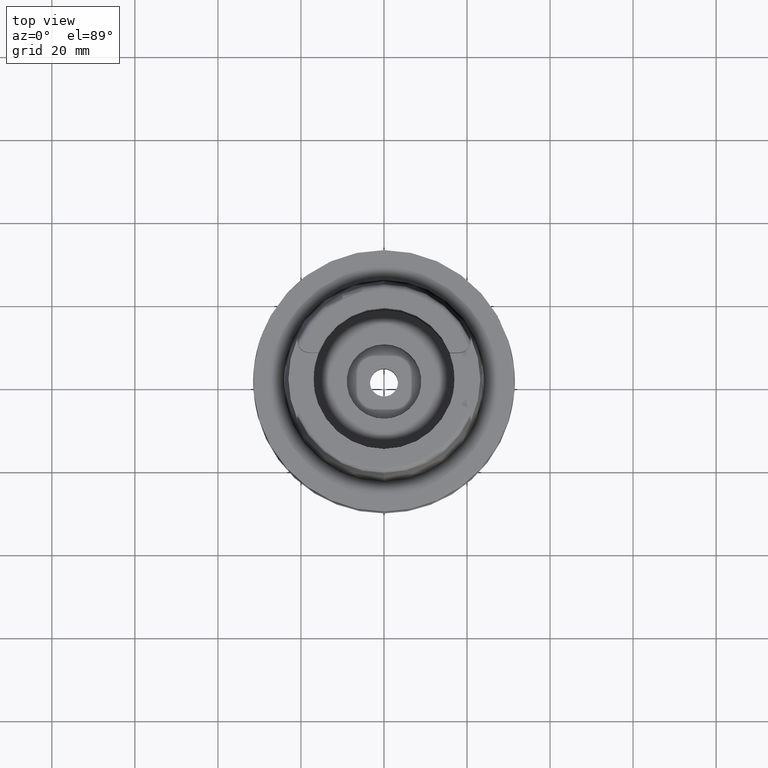
[diagram: clean part render]
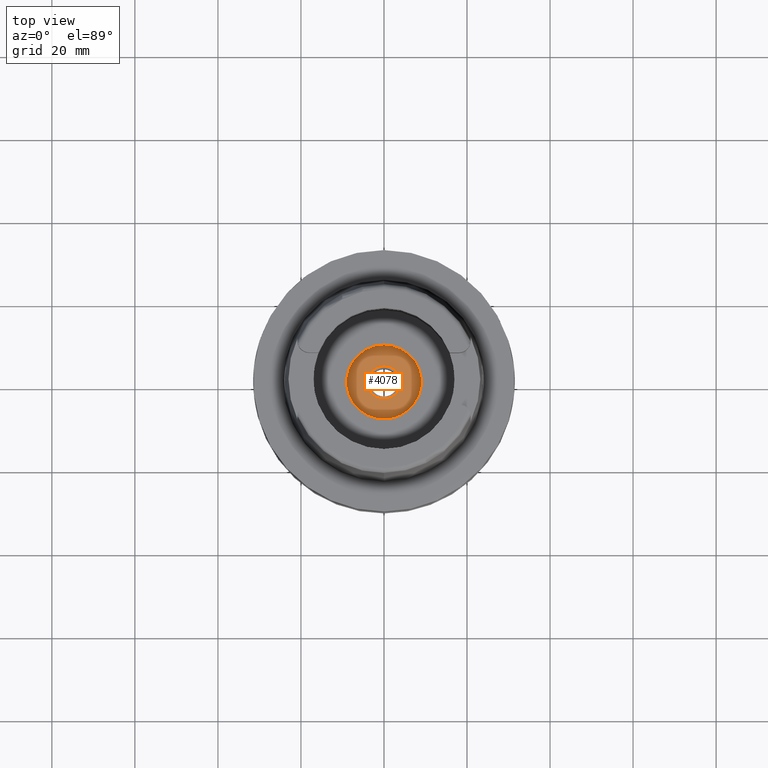
[diagram: same view with one face highlighted and labeled with its STEP entity id]
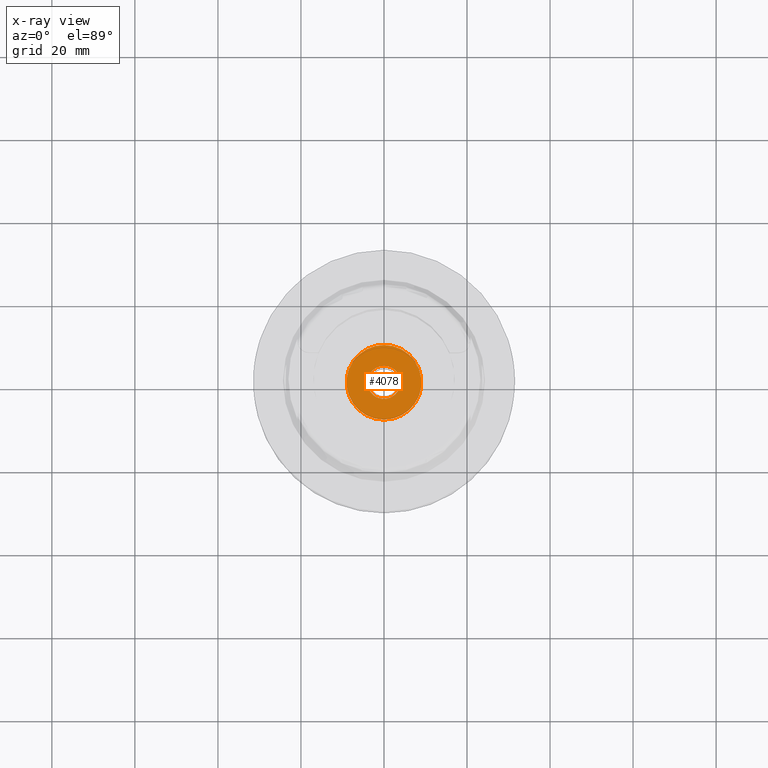
[diagram: x-ray of the same camera — body ghosted, the highlighted face saturated]
A machine part, top view. The second image highlights one B-rep face of the part: STEP entity #4078.
The next image is the same camera in x-ray: the body ghosted, the highlighted face saturated — about 0% of this face is hidden behind the body in this view.
In plain terms, the highlighted planar face has unit normal (0, 0, 1).
Its self-contained STEP definition (entity closure, byte-faithful):
#1961=CARTESIAN_POINT('',(0.E0,0.E0,-2.195E1));
#1962=DIRECTION('',(0.E0,0.E0,-1.E0));
#1963=DIRECTION('',(0.E0,-1.E0,0.E0));
#1964=AXIS2_PLACEMENT_3D('',#1961,#1962,#1963);
#1969=CARTESIAN_POINT('',(0.E0,0.E0,-2.195E1));
#1970=DIRECTION('',(0.E0,0.E0,-1.E0));
#1971=DIRECTION('',(0.E0,1.E0,0.E0));
#1972=AXIS2_PLACEMENT_3D('',#1969,#1970,#1971);
#1977=CARTESIAN_POINT('',(0.E0,0.E0,-2.195E1));
#1978=DIRECTION('',(0.E0,0.E0,1.E0));
#1979=DIRECTION('',(0.E0,-1.E0,0.E0));
#1980=AXIS2_PLACEMENT_3D('',#1977,#1978,#1979);
#1985=CARTESIAN_POINT('',(0.E0,0.E0,-2.195E1));
#1986=DIRECTION('',(0.E0,0.E0,1.E0));
#1987=DIRECTION('',(0.E0,1.E0,0.E0));
#1988=AXIS2_PLACEMENT_3D('',#1985,#1986,#1987);
#2458=CARTESIAN_POINT('',(0.E0,9.E0,-2.195E1));
#2459=VERTEX_POINT('',#2458);
#2460=CARTESIAN_POINT('',(0.E0,-9.E0,-2.195E1));
#2461=VERTEX_POINT('',#2460);
#2462=CARTESIAN_POINT('',(0.E0,-4.E0,-2.195E1));
#2463=CARTESIAN_POINT('',(0.E0,4.E0,-2.195E1));
#2464=VERTEX_POINT('',#2462);
#2465=VERTEX_POINT('',#2463);
#4063=CARTESIAN_POINT('',(0.E0,0.E0,-2.195E1));
#4064=DIRECTION('',(0.E0,0.E0,1.E0));
#4065=DIRECTION('',(0.E0,1.E0,0.E0));
#4066=AXIS2_PLACEMENT_3D('',#4063,#4064,#4065);
#4067=PLANE('',#4066);
#4069=ORIENTED_EDGE('',*,*,#4068,.T.);
#4071=ORIENTED_EDGE('',*,*,#4070,.T.);
#4072=EDGE_LOOP('',(#4069,#4071));
#4073=FACE_OUTER_BOUND('',#4072,.F.);
#4074=ORIENTED_EDGE('',*,*,#4056,.T.);
#4075=ORIENTED_EDGE('',*,*,#4045,.T.);
#4076=EDGE_LOOP('',(#4074,#4075));
#4077=FACE_BOUND('',#4076,.F.);
#1965=CIRCLE('',#1964,9.E0);
#1973=CIRCLE('',#1972,9.E0);
#1981=CIRCLE('',#1980,4.E0);
#1989=CIRCLE('',#1988,4.E0);
#4045=EDGE_CURVE('',#2465,#2464,#1989,.T.);
#4056=EDGE_CURVE('',#2464,#2465,#1981,.T.);
#4068=EDGE_CURVE('',#2461,#2459,#1965,.T.);
#4070=EDGE_CURVE('',#2459,#2461,#1973,.T.);
#4078=ADVANCED_FACE('',(#4073,#4077),#4067,.T.);